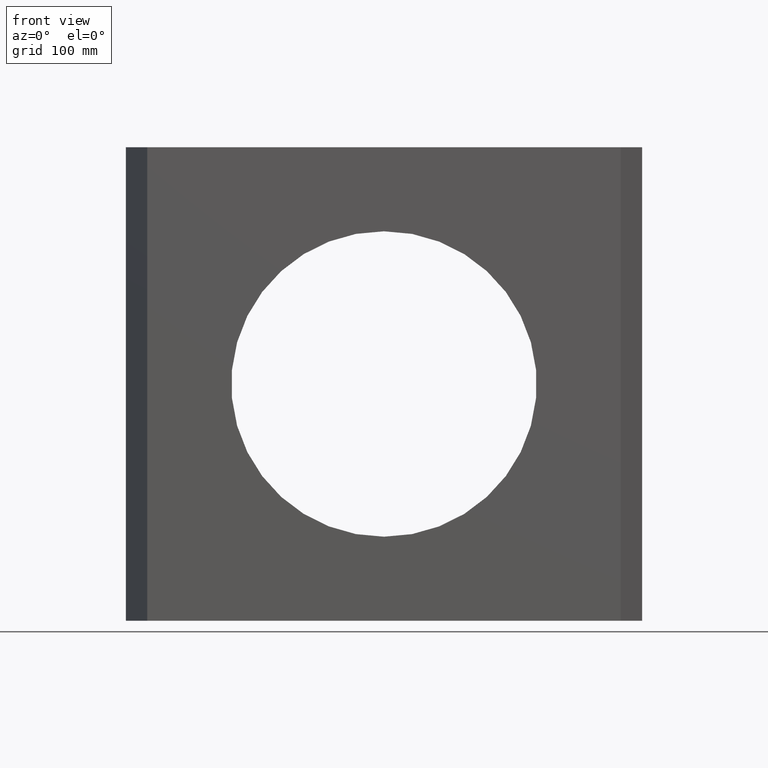
[diagram: clean part render]
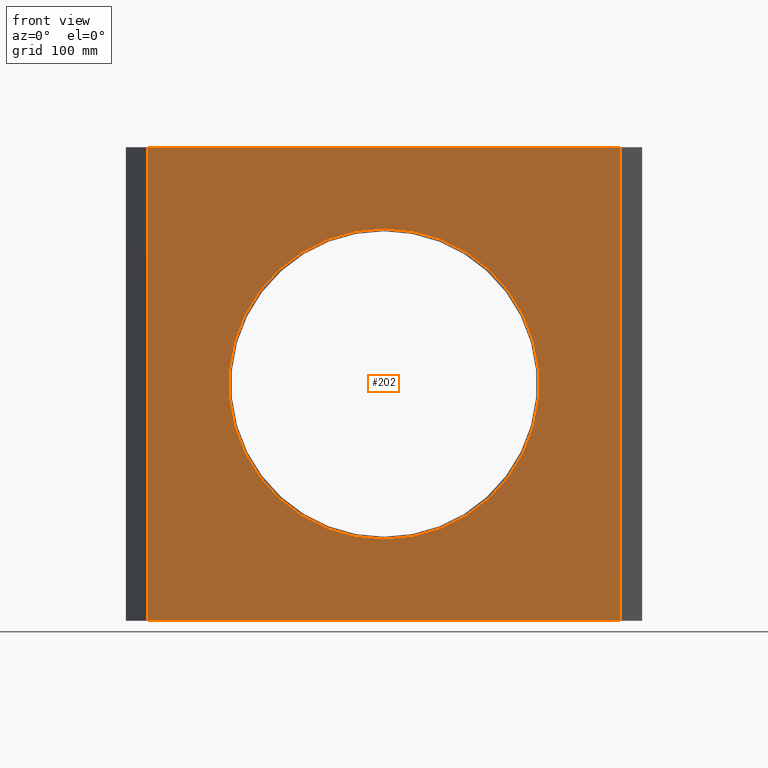
[diagram: same view with one face highlighted and labeled with its STEP entity id]
A machine part, front view. The second image highlights one B-rep face of the part: STEP entity #202.
In plain terms, the highlighted planar face has unit normal (0, 1, 0).
Its self-contained STEP definition (entity closure, byte-faithful):
#27 = PLANE ( 'NONE',  #520 ) ;
#34 = FACE_BOUND ( 'NONE', #144, .T. ) ;
#48 = EDGE_CURVE ( 'NONE', #467, #225, #453, .T. ) ;
#55 = CARTESIAN_POINT ( 'NONE',  ( 387.5000000000000000, -2.775557561562891351E-14, -387.5000000000000000 ) ) ;
#97 = DIRECTION ( 'NONE',  ( -0.0000000000000000000, -0.0000000000000000000, -1.000000000000000000 ) ) ;
#100 = CARTESIAN_POINT ( 'NONE',  ( 3.110602869834276550E-14, -5.886160431397169163E-14, 253.9999999999999432 ) ) ;
#144 = EDGE_LOOP ( 'NONE', ( #584, #970 ) ) ;
#177 = VERTEX_POINT ( 'NONE', #409 ) ;
#184 = ORIENTED_EDGE ( 'NONE', *, *, #956, .F. ) ;
#192 = CARTESIAN_POINT ( 'NONE',  ( 0.0000000000000000000, -2.775557561562891351E-14, 0.0000000000000000000 ) ) ;
#202 = ADVANCED_FACE ( 'NONE', ( #34, #489 ), #27, .F. ) ;
#214 = EDGE_CURVE ( 'NONE', #225, #467, #671, .T. ) ;
#225 = VERTEX_POINT ( 'NONE', #100 ) ;
#227 = DIRECTION ( 'NONE',  ( 1.000000000000000000, 0.0000000000000000000, 0.0000000000000000000 ) ) ;
#229 = DIRECTION ( 'NONE',  ( -0.0000000000000000000, -0.0000000000000000000, -1.000000000000000000 ) ) ;
#232 = CARTESIAN_POINT ( 'NONE',  ( 387.5000000000000000, -2.775557561562891351E-14, 387.5000000000000000 ) ) ;
#254 = EDGE_LOOP ( 'NONE', ( #712, #937, #184, #401 ) ) ;
#298 = EDGE_CURVE ( 'NONE', #177, #865, #604, .T. ) ;
#300 = AXIS2_PLACEMENT_3D ( 'NONE', #192, #493, #882 ) ;
#382 = CARTESIAN_POINT ( 'NONE',  ( -387.5000000000000000, -2.775557561562891351E-14, 387.5000000000000000 ) ) ;
#386 = LINE ( 'NONE', #460, #660 ) ;
#401 = ORIENTED_EDGE ( 'NONE', *, *, #655, .T. ) ;
#406 = EDGE_CURVE ( 'NONE', #669, #865, #386, .T. ) ;
#409 = CARTESIAN_POINT ( 'NONE',  ( 387.5000000000000000, -2.775557561562891351E-14, 387.5000000000000000 ) ) ;
#415 = DIRECTION ( 'NONE',  ( 0.0000000000000000000, -0.0000000000000000000, 1.000000000000000000 ) ) ;
#433 = VECTOR ( 'NONE', #97, 1000.000000000000000 ) ;
#453 = CIRCLE ( 'NONE', #300, 253.9999999999999432 ) ;
#459 = CARTESIAN_POINT ( 'NONE',  ( -387.5000000000000000, -2.775557561562891351E-14, 387.5000000000000000 ) ) ;
#460 = CARTESIAN_POINT ( 'NONE',  ( -387.5000000000000000, -2.775557561562891351E-14, -387.5000000000000000 ) ) ;
#467 = VERTEX_POINT ( 'NONE', #948 ) ;
#468 = CARTESIAN_POINT ( 'NONE',  ( 0.0000000000000000000, -2.775557561562891351E-14, 0.0000000000000000000 ) ) ;
#470 = VERTEX_POINT ( 'NONE', #459 ) ;
#489 = FACE_OUTER_BOUND ( 'NONE', #254, .T. ) ;
#493 = DIRECTION ( 'NONE',  ( 0.0000000000000000000, -1.000000000000000000, -1.224646799147353454E-16 ) ) ;
#520 = AXIS2_PLACEMENT_3D ( 'NONE', #722, #803, #415 ) ;
#540 = CARTESIAN_POINT ( 'NONE',  ( -387.5000000000000000, -2.775557561562891351E-14, -387.5000000000000000 ) ) ;
#563 = VECTOR ( 'NONE', #229, 1000.000000000000000 ) ;
#584 = ORIENTED_EDGE ( 'NONE', *, *, #48, .F. ) ;
#594 = VECTOR ( 'NONE', #227, 1000.000000000000000 ) ;
#604 = LINE ( 'NONE', #232, #563 ) ;
#605 = LINE ( 'NONE', #849, #594 ) ;
#655 = EDGE_CURVE ( 'NONE', #470, #669, #772, .T. ) ;
#660 = VECTOR ( 'NONE', #922, 1000.000000000000000 ) ;
#669 = VERTEX_POINT ( 'NONE', #540 ) ;
#671 = CIRCLE ( 'NONE', #807, 253.9999999999999432 ) ;
#695 = DIRECTION ( 'NONE',  ( 0.0000000000000000000, 1.224646799147353454E-16, -1.000000000000000000 ) ) ;
#712 = ORIENTED_EDGE ( 'NONE', *, *, #406, .T. ) ;
#722 = CARTESIAN_POINT ( 'NONE',  ( -387.5000000000000000, -2.775557561562891351E-14, 387.5000000000000000 ) ) ;
#772 = LINE ( 'NONE', #382, #433 ) ;
#783 = DIRECTION ( 'NONE',  ( 0.0000000000000000000, -1.000000000000000000, -1.224646799147353454E-16 ) ) ;
#803 = DIRECTION ( 'NONE',  ( 0.0000000000000000000, 1.000000000000000000, 0.0000000000000000000 ) ) ;
#807 = AXIS2_PLACEMENT_3D ( 'NONE', #468, #783, #695 ) ;
#849 = CARTESIAN_POINT ( 'NONE',  ( -387.5000000000000000, -2.775557561562891351E-14, 387.5000000000000000 ) ) ;
#865 = VERTEX_POINT ( 'NONE', #55 ) ;
#882 = DIRECTION ( 'NONE',  ( 0.0000000000000000000, 1.224646799147353454E-16, -1.000000000000000000 ) ) ;
#922 = DIRECTION ( 'NONE',  ( 1.000000000000000000, 0.0000000000000000000, 0.0000000000000000000 ) ) ;
#937 = ORIENTED_EDGE ( 'NONE', *, *, #298, .F. ) ;
#948 = CARTESIAN_POINT ( 'NONE',  ( 0.0000000000000000000, 3.350453082713856719E-15, -253.9999999999999432 ) ) ;
#956 = EDGE_CURVE ( 'NONE', #470, #177, #605, .T. ) ;
#970 = ORIENTED_EDGE ( 'NONE', *, *, #214, .F. ) ;